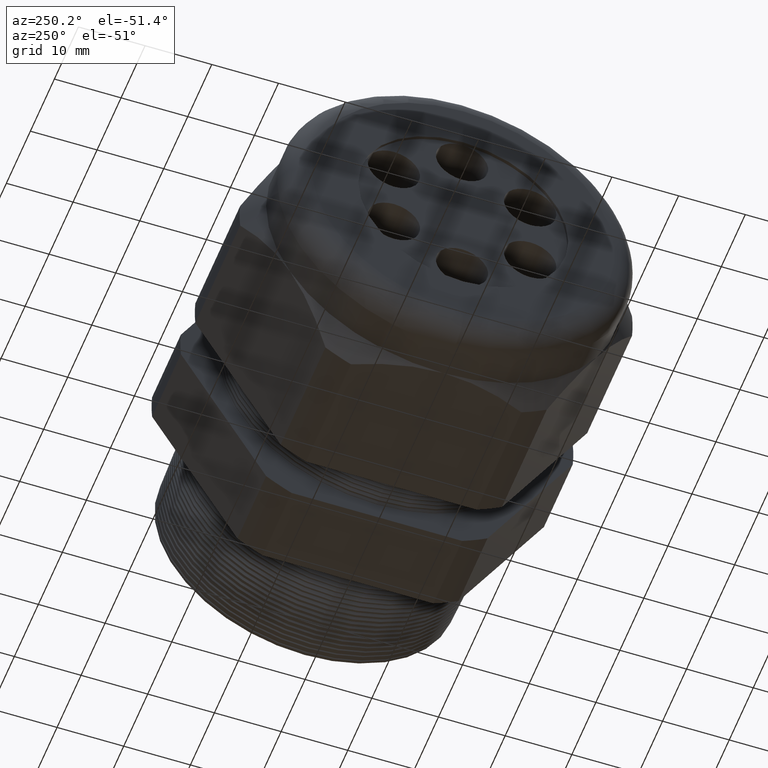
[diagram: clean part render]
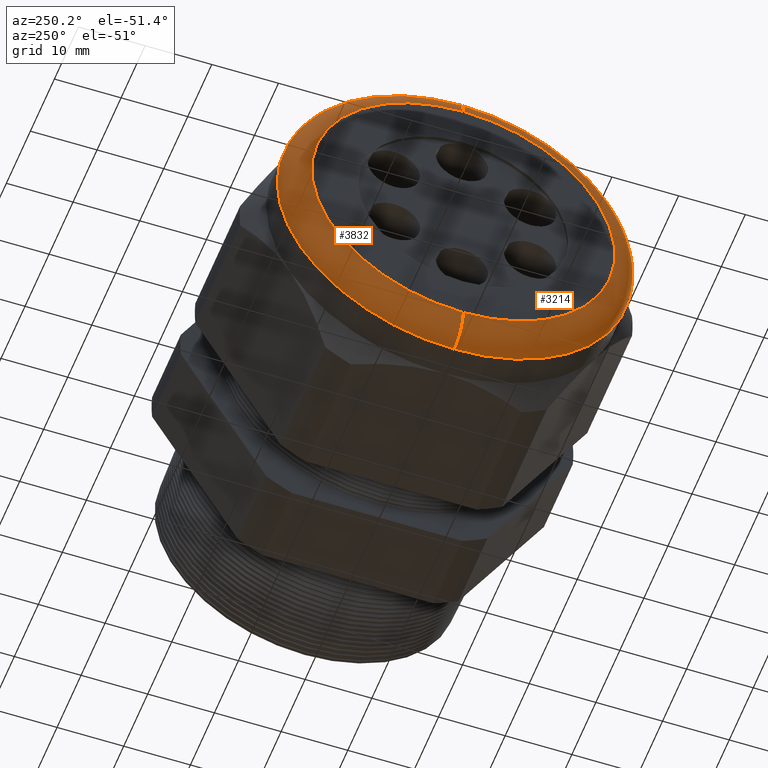
[diagram: same view with one multi-face feature highlighted, each face labeled with its STEP entity id]
A machine part, auxiliary view. The highlighted faces form ONE feature: a constant-radius fillet chain: 2 tangent blend faces with common blend radius 3.81 mm. The faces share edges in the B-rep.
Their STEP definitions:
[1] entity #3832 (Torus):
#2731 = DIRECTION ( 'NONE',  ( 0.0000000000000000000, 1.000000000000000000, 1.224646799147353200E-016 ) ) ;
#2732 = CARTESIAN_POINT ( 'NONE',  ( -2.049999999999999800, 1.096058885236880800E-016, -0.8949999999999998000 ) ) ;
#2733 = AXIS2_PLACEMENT_3D ( 'NONE', #2732, #2731, #2795 ) ;
#2734 = CIRCLE ( 'NONE', #2733, 0.1500000000000000500 ) ;
#2735 = DIRECTION ( 'NONE',  ( 0.0000000000000000000, 0.0000000000000000000, 1.000000000000000000 ) ) ;
#2736 = DIRECTION ( 'NONE',  ( -1.000000000000000000, 0.0000000000000000000, 0.0000000000000000000 ) ) ;
#2737 = CARTESIAN_POINT ( 'NONE',  ( -2.199999999999999700, 0.0000000000000000000, 0.0000000000000000000 ) ) ;
#2738 = AXIS2_PLACEMENT_3D ( 'NONE', #2737, #2736, #2735 ) ;
#2739 = CIRCLE ( 'NONE', #2738, 0.8949999999999998000 ) ;
#2778 = DIRECTION ( 'NONE',  ( 0.0000000000000000000, 0.0000000000000000000, 1.000000000000000000 ) ) ;
#2779 = DIRECTION ( 'NONE',  ( -1.000000000000000000, 0.0000000000000000000, 0.0000000000000000000 ) ) ;
#2780 = AXIS2_PLACEMENT_3D ( 'NONE', #2783, #2779, #2778 ) ;
#2781 = TOROIDAL_SURFACE ( 'NONE', #2780, 0.8949999999999998000, 0.1499999999999999900 ) ;
#2783 = CARTESIAN_POINT ( 'NONE',  ( -2.049999999999999800, 0.0000000000000000000, 0.0000000000000000000 ) ) ;
#2784 = FACE_OUTER_BOUND ( 'NONE', #3826, .T. ) ;
#2787 = CARTESIAN_POINT ( 'NONE',  ( -2.049999999999999800, 0.0000000000000000000, -1.044999999999999700 ) ) ;
#2788 = DIRECTION ( 'NONE',  ( 0.0000000000000000000, 0.0000000000000000000, 1.000000000000000000 ) ) ;
#2789 = DIRECTION ( 'NONE',  ( 1.000000000000000000, 0.0000000000000000000, 0.0000000000000000000 ) ) ;
#2790 = CARTESIAN_POINT ( 'NONE',  ( -2.049999999999999800, 0.0000000000000000000, 0.0000000000000000000 ) ) ;
#2791 = AXIS2_PLACEMENT_3D ( 'NONE', #2790, #2789, #2788 ) ;
#2792 = CIRCLE ( 'NONE', #2791, 1.044999999999999700 ) ;
#2793 = CARTESIAN_POINT ( 'NONE',  ( -2.049999999999999800, 1.279755905108983900E-016, 1.044999999999999700 ) ) ;
#2794 = CARTESIAN_POINT ( 'NONE',  ( -2.199999999999999700, 1.187907395172932200E-016, -0.8949999999999998000 ) ) ;
#2795 = DIRECTION ( 'NONE',  ( 0.0000000000000000000, -1.224646799147352500E-016, 1.000000000000000000 ) ) ;
#2971 = CARTESIAN_POINT ( 'NONE',  ( -2.199999999999999700, 0.0000000000000000000, 0.8949999999999998000 ) ) ;
#2972 = DIRECTION ( 'NONE',  ( 0.0000000000000000000, 0.0000000000000000000, -1.000000000000000000 ) ) ;
#2973 = DIRECTION ( 'NONE',  ( 0.0000000000000000000, -1.000000000000000000, 0.0000000000000000000 ) ) ;
#2974 = CARTESIAN_POINT ( 'NONE',  ( -2.049999999999999800, 0.0000000000000000000, 0.8949999999999998000 ) ) ;
#2975 = AXIS2_PLACEMENT_3D ( 'NONE', #2974, #2973, #2972 ) ;
#2980 = CIRCLE ( 'NONE', #2975, 0.1500000000000000500 ) ;
#3815 = EDGE_CURVE ( 'NONE', #5061, #3820, #2739, .T. ) ;
#3816 = ORIENTED_EDGE ( 'NONE', *, *, #3817, .T. ) ;
#3817 = EDGE_CURVE ( 'NONE', #3825, #3820, #2734, .T. ) ;
#3818 = ORIENTED_EDGE ( 'NONE', *, *, #3815, .F. ) ;
#3820 = VERTEX_POINT ( 'NONE', #2794 ) ;
#3821 = VERTEX_POINT ( 'NONE', #2793 ) ;
#3822 = EDGE_CURVE ( 'NONE', #3825, #3821, #2792, .T. ) ;
#3823 = ORIENTED_EDGE ( 'NONE', *, *, #3822, .F. ) ;
#3825 = VERTEX_POINT ( 'NONE', #2787 ) ;
#3826 = EDGE_LOOP ( 'NONE', ( #3823, #3816, #3818, #5063 ) ) ;
#3832 = ADVANCED_FACE ( 'NONE', ( #2784 ), #2781, .T. ) ;
#5060 = EDGE_CURVE ( 'NONE', #3821, #5061, #2980, .T. ) ;
#5061 = VERTEX_POINT ( 'NONE', #2971 ) ;
#5063 = ORIENTED_EDGE ( 'NONE', *, *, #5060, .F. ) ;
[2] entity #3214 (Torus):
#1740 = DIRECTION ( 'NONE',  ( 0.0000000000000000000, 0.0000000000000000000, 1.000000000000000000 ) ) ;
#1741 = DIRECTION ( 'NONE',  ( -1.000000000000000000, 0.0000000000000000000, 0.0000000000000000000 ) ) ;
#1742 = CARTESIAN_POINT ( 'NONE',  ( -2.049999999999999800, 0.0000000000000000000, 0.0000000000000000000 ) ) ;
#1743 = AXIS2_PLACEMENT_3D ( 'NONE', #1742, #1741, #1740 ) ;
#1744 = TOROIDAL_SURFACE ( 'NONE', #1743, 0.8949999999999998000, 0.1499999999999999900 ) ;
#1745 = FACE_OUTER_BOUND ( 'NONE', #3221, .T. ) ;
#2731 = DIRECTION ( 'NONE',  ( 0.0000000000000000000, 1.000000000000000000, 1.224646799147353200E-016 ) ) ;
#2732 = CARTESIAN_POINT ( 'NONE',  ( -2.049999999999999800, 1.096058885236880800E-016, -0.8949999999999998000 ) ) ;
#2733 = AXIS2_PLACEMENT_3D ( 'NONE', #2732, #2731, #2795 ) ;
#2734 = CIRCLE ( 'NONE', #2733, 0.1500000000000000500 ) ;
#2787 = CARTESIAN_POINT ( 'NONE',  ( -2.049999999999999800, 0.0000000000000000000, -1.044999999999999700 ) ) ;
#2793 = CARTESIAN_POINT ( 'NONE',  ( -2.049999999999999800, 1.279755905108983900E-016, 1.044999999999999700 ) ) ;
#2794 = CARTESIAN_POINT ( 'NONE',  ( -2.199999999999999700, 1.187907395172932200E-016, -0.8949999999999998000 ) ) ;
#2795 = DIRECTION ( 'NONE',  ( 0.0000000000000000000, -1.224646799147352500E-016, 1.000000000000000000 ) ) ;
#2971 = CARTESIAN_POINT ( 'NONE',  ( -2.199999999999999700, 0.0000000000000000000, 0.8949999999999998000 ) ) ;
#2972 = DIRECTION ( 'NONE',  ( 0.0000000000000000000, 0.0000000000000000000, -1.000000000000000000 ) ) ;
#2973 = DIRECTION ( 'NONE',  ( 0.0000000000000000000, -1.000000000000000000, 0.0000000000000000000 ) ) ;
#2974 = CARTESIAN_POINT ( 'NONE',  ( -2.049999999999999800, 0.0000000000000000000, 0.8949999999999998000 ) ) ;
#2975 = AXIS2_PLACEMENT_3D ( 'NONE', #2974, #2973, #2972 ) ;
#2980 = CIRCLE ( 'NONE', #2975, 0.1500000000000000500 ) ;
#3204 = ORIENTED_EDGE ( 'NONE', *, *, #5704, .F. ) ;
#3213 = ORIENTED_EDGE ( 'NONE', *, *, #3817, .F. ) ;
#3214 = ADVANCED_FACE ( 'NONE', ( #1745 ), #1744, .T. ) ;
#3216 = ORIENTED_EDGE ( 'NONE', *, *, #5692, .F. ) ;
#3219 = ORIENTED_EDGE ( 'NONE', *, *, #5060, .T. ) ;
#3221 = EDGE_LOOP ( 'NONE', ( #3213, #3216, #3219, #3204 ) ) ;
#3817 = EDGE_CURVE ( 'NONE', #3825, #3820, #2734, .T. ) ;
#3820 = VERTEX_POINT ( 'NONE', #2794 ) ;
#3821 = VERTEX_POINT ( 'NONE', #2793 ) ;
#3825 = VERTEX_POINT ( 'NONE', #2787 ) ;
#4528 = DIRECTION ( 'NONE',  ( 0.0000000000000000000, 0.0000000000000000000, 1.000000000000000000 ) ) ;
#4529 = DIRECTION ( 'NONE',  ( 1.000000000000000000, 0.0000000000000000000, 0.0000000000000000000 ) ) ;
#4530 = AXIS2_PLACEMENT_3D ( 'NONE', #4536, #4529, #4528 ) ;
#4531 = CIRCLE ( 'NONE', #4530, 1.044999999999999700 ) ;
#4536 = CARTESIAN_POINT ( 'NONE',  ( -2.049999999999999800, 0.0000000000000000000, 0.0000000000000000000 ) ) ;
#4576 = DIRECTION ( 'NONE',  ( 0.0000000000000000000, 0.0000000000000000000, 1.000000000000000000 ) ) ;
#4577 = DIRECTION ( 'NONE',  ( -1.000000000000000000, 0.0000000000000000000, 0.0000000000000000000 ) ) ;
#4578 = AXIS2_PLACEMENT_3D ( 'NONE', #4584, #4577, #4576 ) ;
#4579 = CIRCLE ( 'NONE', #4578, 0.8949999999999998000 ) ;
#4584 = CARTESIAN_POINT ( 'NONE',  ( -2.199999999999999700, 0.0000000000000000000, 0.0000000000000000000 ) ) ;
#5060 = EDGE_CURVE ( 'NONE', #3821, #5061, #2980, .T. ) ;
#5061 = VERTEX_POINT ( 'NONE', #2971 ) ;
#5692 = EDGE_CURVE ( 'NONE', #3821, #3825, #4531, .T. ) ;
#5704 = EDGE_CURVE ( 'NONE', #3820, #5061, #4579, .T. ) ;